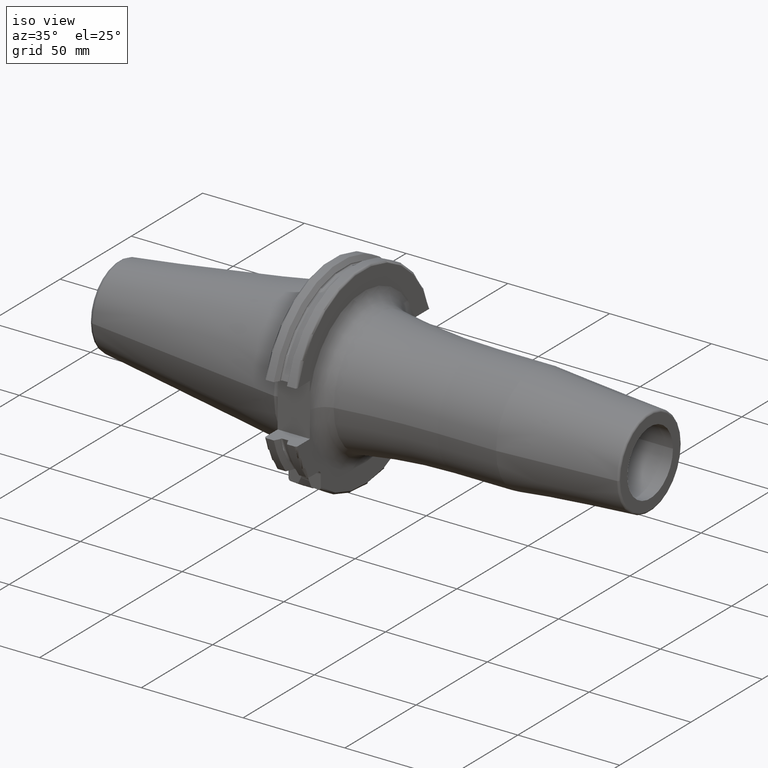
[diagram: clean part render]
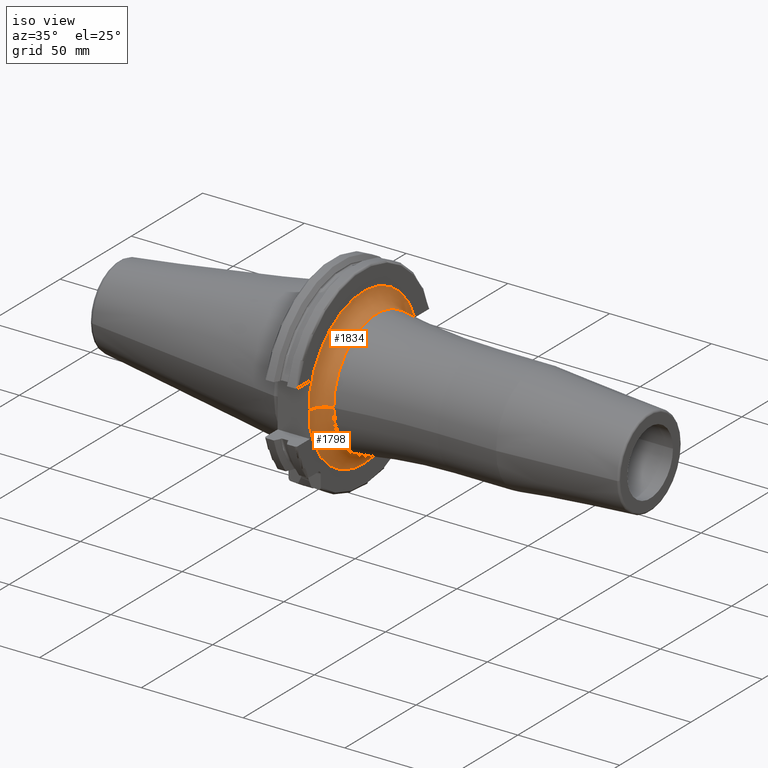
[diagram: same view with one multi-face feature highlighted, each face labeled with its STEP entity id]
A machine part, iso view. The highlighted faces form ONE feature: a constant-radius fillet chain: 2 tangent blend faces with common blend radius 8 mm. The faces share edges in the B-rep.
Their STEP definitions:
[1] entity #1834 (Torus):
#155=CARTESIAN_POINT('',(1.905E1,0.E0,0.E0));
#156=DIRECTION('',(1.E0,0.E0,0.E0));
#157=DIRECTION('',(0.E0,9.415942177302E-1,3.367496535069E-1));
#158=AXIS2_PLACEMENT_3D('',#155,#156,#157);
#180=CARTESIAN_POINT('',(2.705E1,-3.830735588861E1,3.992385551197E-3));
#181=DIRECTION('',(0.E0,-1.042198146258E-4,-9.999999945691E-1));
#182=DIRECTION('',(-9.948945960349E-1,1.009194860766E-1,-1.051781018815E-5));
#183=AXIS2_PLACEMENT_3D('',#180,#181,#182);
#203=CARTESIAN_POINT('',(1.905E1,-3.750000617633E1,7.822998264708E0));
#204=CARTESIAN_POINT('',(1.905E1,-3.750000617633E1,6.956390784734E0));
#205=CARTESIAN_POINT('',(1.906149209346E1,-3.749999711771E1,5.222099729146E0));
#206=CARTESIAN_POINT('',(1.908430936946E1,-3.750000082351E1,2.614378134347E0));
#207=CARTESIAN_POINT('',(1.909083402845E1,-3.75E1,8.744583780131E-1));
#208=CARTESIAN_POINT('',(1.909084323172E1,-3.75E1,3.908243069692E-3));
#210=CARTESIAN_POINT('',(1.908283882123E1,3.53E1,1.29E1));
#211=CARTESIAN_POINT('',(1.907191230808E1,3.542799620243E1,1.29E1));
#212=CARTESIAN_POINT('',(1.905550123512E1,3.568431150709E1,1.290001038586E1));
#213=CARTESIAN_POINT('',(1.905E1,3.594133538423E1,1.289997922827E1));
#214=CARTESIAN_POINT('',(1.905E1,3.607000013036E1,1.289997922827E1));
#216=CARTESIAN_POINT('',(1.908283882123E1,3.53E1,1.29E1));
#217=CARTESIAN_POINT('',(1.912203253834E1,3.53E1,1.164363178538E1));
#218=CARTESIAN_POINT('',(1.925608955812E1,3.53E1,9.215240558692E0));
#219=CARTESIAN_POINT('',(1.947529032297E1,3.53E1,5.743267701369E0));
#220=CARTESIAN_POINT('',(1.961130723162E1,3.53E1,2.668754743669E0));
#221=CARTESIAN_POINT('',(1.963681741626E1,3.53E1,8.470749321342E-1));
#222=CARTESIAN_POINT('',(1.963678136934E1,3.53E1,-3.686861902536E-3));
#224=CARTESIAN_POINT('',(2.705E1,3.830735588772E1,-4.000961218379E-3));
#225=DIRECTION('',(0.E0,1.044436793885E-4,9.999999945458E-1));
#226=DIRECTION('',(-9.266523288324E-1,-3.759194859647E-1,3.926241448213E-5));
#227=AXIS2_PLACEMENT_3D('',#224,#225,#226);
#229=CARTESIAN_POINT('',(2.576232876712E1,0.E0,0.E0));
#230=DIRECTION('',(1.E0,0.E0,0.E0));
#231=DIRECTION('',(0.E0,1.E0,0.E0));
#232=AXIS2_PLACEMENT_3D('',#229,#230,#231);
#1513=VERTEX_POINT('',#216);
#1514=VERTEX_POINT('',#222);
#1520=CARTESIAN_POINT('',(2.576232876712E1,-3.041166722259E1,0.E0));
#1521=CARTESIAN_POINT('',(2.576232876712E1,3.041166722259E1,0.E0));
#1522=VERTEX_POINT('',#1520);
#1523=VERTEX_POINT('',#1521);
#1524=CARTESIAN_POINT('',(1.905E1,3.606998499714E1,1.289998889232E1));
#1525=CARTESIAN_POINT('',(1.905E1,-3.750014435566E1,7.822576584524E0));
#1526=VERTEX_POINT('',#1524);
#1527=VERTEX_POINT('',#1525);
#1528=CARTESIAN_POINT('',(1.909084323172E1,-3.75E1,3.908243069691E-3));
#1529=VERTEX_POINT('',#1528);
#1818=CARTESIAN_POINT('',(2.705E1,0.E0,0.E0));
#1819=DIRECTION('',(1.E0,0.E0,0.E0));
#1820=DIRECTION('',(0.E0,1.485959642861E-3,-9.999988959614E-1));
#1821=AXIS2_PLACEMENT_3D('',#1818,#1819,#1820);
#1822=TOROIDAL_SURFACE('',#1821,3.830735609666E1,8.E0);
#1824=ORIENTED_EDGE('',*,*,#1823,.T.);
#1825=ORIENTED_EDGE('',*,*,#1788,.F.);
#1826=ORIENTED_EDGE('',*,*,#1805,.F.);
#1827=ORIENTED_EDGE('',*,*,#1767,.F.);
#1829=ORIENTED_EDGE('',*,*,#1828,.F.);
#1830=ORIENTED_EDGE('',*,*,#1686,.T.);
#1831=ORIENTED_EDGE('',*,*,#1792,.T.);
#1832=EDGE_LOOP('',(#1824,#1825,#1826,#1827,#1829,#1830,#1831));
#1833=FACE_OUTER_BOUND('',#1832,.F.);
#1834=ADVANCED_FACE('',(#1833),#1822,.F.);
#159=CIRCLE('',#158,3.830735609666E1);
#184=CIRCLE('',#183,8.E0);
#209=B_SPLINE_CURVE_WITH_KNOTS('',3,(#203,#204,#205,#206,#207,#208),
.UNSPECIFIED.,.F.,.F.,(4,1,1,4),(0.E0,3.333333333333E-1,6.666666666667E-1,1.E0),
.UNSPECIFIED.);
#215=B_SPLINE_CURVE_WITH_KNOTS('',3,(#210,#211,#212,#213,#214),.UNSPECIFIED.,
.F.,.F.,(4,1,4),(0.E0,5.E-1,1.E0),.UNSPECIFIED.);
#223=B_SPLINE_CURVE_WITH_KNOTS('',3,(#216,#217,#218,#219,#220,#221,#222),
.UNSPECIFIED.,.F.,.F.,(4,1,1,1,4),(0.E0,2.5E-1,5.E-1,7.5E-1,1.E0),
.UNSPECIFIED.);
#228=CIRCLE('',#227,8.E0);
#233=CIRCLE('',#232,3.041166722259E1);
#1686=EDGE_CURVE('',#1513,#1514,#223,.T.);
#1767=EDGE_CURVE('',#1526,#1527,#159,.T.);
#1788=EDGE_CURVE('',#1529,#1522,#184,.T.);
#1792=EDGE_CURVE('',#1514,#1523,#228,.T.);
#1805=EDGE_CURVE('',#1527,#1529,#209,.T.);
#1823=EDGE_CURVE('',#1523,#1522,#233,.T.);
#1828=EDGE_CURVE('',#1513,#1526,#215,.T.);
[2] entity #1798 (Torus):
#130=CARTESIAN_POINT('',(1.905E1,0.E0,0.E0));
#131=DIRECTION('',(1.E0,0.E0,0.E0));
#132=DIRECTION('',(0.E0,-9.789211111043E-1,-2.042387285368E-1));
#133=AXIS2_PLACEMENT_3D('',#130,#131,#132);
#172=CARTESIAN_POINT('',(1.909084323172E1,-3.75E1,3.908243069692E-3));
#173=CARTESIAN_POINT('',(1.909084944962E1,-3.75E1,-5.842516242867E-1));
#174=CARTESIAN_POINT('',(1.908793573392E1,-3.750000027272E1,-1.780124366833E0));
#175=CARTESIAN_POINT('',(1.907589305179E1,-3.749999904547E1,-3.594818013262E0));
#176=CARTESIAN_POINT('',(1.905913221673E1,-3.750000354541E1,-5.543720527889E0));
#177=CARTESIAN_POINT('',(1.905E1,-3.749999236373E1,-7.037183541872E0));
#178=CARTESIAN_POINT('',(1.905E1,-3.749999236373E1,-7.823505924601E0));
#180=CARTESIAN_POINT('',(2.705E1,-3.830735588861E1,3.992385551197E-3));
#181=DIRECTION('',(0.E0,-1.042198146258E-4,-9.999999945691E-1));
#182=DIRECTION('',(-9.948945960349E-1,1.009194860766E-1,-1.051781018815E-5));
#183=AXIS2_PLACEMENT_3D('',#180,#181,#182);
#185=CARTESIAN_POINT('',(1.908283882123E1,3.53E1,-1.29E1));
#186=CARTESIAN_POINT('',(1.911751556559E1,3.53E1,-1.178842491575E1));
#187=CARTESIAN_POINT('',(1.923295000569E1,3.53E1,-9.585383804361E0));
#188=CARTESIAN_POINT('',(1.944105458970E1,3.53E1,-6.313792641381E0));
#189=CARTESIAN_POINT('',(1.959798947956E1,3.53E1,-3.142926720785E0));
#190=CARTESIAN_POINT('',(1.963673726404E1,3.53E1,-1.044638747363E0));
#191=CARTESIAN_POINT('',(1.963678136934E1,3.53E1,-3.686861902536E-3));
#193=CARTESIAN_POINT('',(1.905E1,3.606998885502E1,-1.290003955435E1));
#194=CARTESIAN_POINT('',(1.905E1,3.594130264989E1,-1.290003955435E1));
#195=CARTESIAN_POINT('',(1.905550307070E1,3.568427418815E1,-1.289998022282E1));
#196=CARTESIAN_POINT('',(1.907191413331E1,3.542797482118E1,-1.29E1));
#197=CARTESIAN_POINT('',(1.908283882123E1,3.53E1,-1.29E1));
#222=CARTESIAN_POINT('',(1.963678136934E1,3.53E1,-3.686861902536E-3));
#224=CARTESIAN_POINT('',(2.705E1,3.830735588772E1,-4.000961218379E-3));
#225=DIRECTION('',(0.E0,1.044436793885E-4,9.999999945458E-1));
#226=DIRECTION('',(-9.266523288324E-1,-3.759194859647E-1,3.926241448213E-5));
#227=AXIS2_PLACEMENT_3D('',#224,#225,#226);
#234=CARTESIAN_POINT('',(2.576232876712E1,0.E0,0.E0));
#235=DIRECTION('',(1.E0,0.E0,0.E0));
#236=DIRECTION('',(0.E0,-1.E0,0.E0));
#237=AXIS2_PLACEMENT_3D('',#234,#235,#236);
#1514=VERTEX_POINT('',#222);
#1515=VERTEX_POINT('',#185);
#1516=CARTESIAN_POINT('',(1.905E1,-3.749987959361E1,-7.823845702786E0));
#1517=CARTESIAN_POINT('',(1.905E1,3.606998850108E1,-1.289997909487E1));
#1518=VERTEX_POINT('',#1516);
#1519=VERTEX_POINT('',#1517);
#1520=CARTESIAN_POINT('',(2.576232876712E1,-3.041166722259E1,0.E0));
#1521=CARTESIAN_POINT('',(2.576232876712E1,3.041166722259E1,0.E0));
#1522=VERTEX_POINT('',#1520);
#1523=VERTEX_POINT('',#1521);
#1528=CARTESIAN_POINT('',(1.909084323172E1,-3.75E1,3.908243069691E-3));
#1529=VERTEX_POINT('',#1528);
#1780=CARTESIAN_POINT('',(2.705E1,0.E0,0.E0));
#1781=DIRECTION('',(1.E0,0.E0,0.E0));
#1782=DIRECTION('',(0.E0,-1.485959642860E-3,9.999988959614E-1));
#1783=AXIS2_PLACEMENT_3D('',#1780,#1781,#1782);
#1784=TOROIDAL_SURFACE('',#1783,3.830735609666E1,8.E0);
#1785=ORIENTED_EDGE('',*,*,#1742,.F.);
#1787=ORIENTED_EDGE('',*,*,#1786,.F.);
#1789=ORIENTED_EDGE('',*,*,#1788,.T.);
#1791=ORIENTED_EDGE('',*,*,#1790,.T.);
#1793=ORIENTED_EDGE('',*,*,#1792,.F.);
#1794=ORIENTED_EDGE('',*,*,#1684,.F.);
#1795=ORIENTED_EDGE('',*,*,#1707,.F.);
#1796=EDGE_LOOP('',(#1785,#1787,#1789,#1791,#1793,#1794,#1795));
#1797=FACE_OUTER_BOUND('',#1796,.F.);
#1798=ADVANCED_FACE('',(#1797),#1784,.F.);
#134=CIRCLE('',#133,3.830735609666E1);
#179=B_SPLINE_CURVE_WITH_KNOTS('',3,(#172,#173,#174,#175,#176,#177,#178),
.UNSPECIFIED.,.F.,.F.,(4,1,1,1,4),(0.E0,2.5E-1,5.E-1,7.5E-1,1.E0),
.UNSPECIFIED.);
#184=CIRCLE('',#183,8.E0);
#192=B_SPLINE_CURVE_WITH_KNOTS('',3,(#185,#186,#187,#188,#189,#190,#191),
.UNSPECIFIED.,.F.,.F.,(4,1,1,1,4),(0.E0,2.5E-1,5.E-1,7.5E-1,1.E0),
.UNSPECIFIED.);
#198=B_SPLINE_CURVE_WITH_KNOTS('',3,(#193,#194,#195,#196,#197),.UNSPECIFIED.,
.F.,.F.,(4,1,4),(0.E0,5.E-1,1.E0),.UNSPECIFIED.);
#228=CIRCLE('',#227,8.E0);
#238=CIRCLE('',#237,3.041166722259E1);
#1684=EDGE_CURVE('',#1515,#1514,#192,.T.);
#1707=EDGE_CURVE('',#1519,#1515,#198,.T.);
#1742=EDGE_CURVE('',#1518,#1519,#134,.T.);
#1786=EDGE_CURVE('',#1529,#1518,#179,.T.);
#1788=EDGE_CURVE('',#1529,#1522,#184,.T.);
#1790=EDGE_CURVE('',#1522,#1523,#238,.T.);
#1792=EDGE_CURVE('',#1514,#1523,#228,.T.);